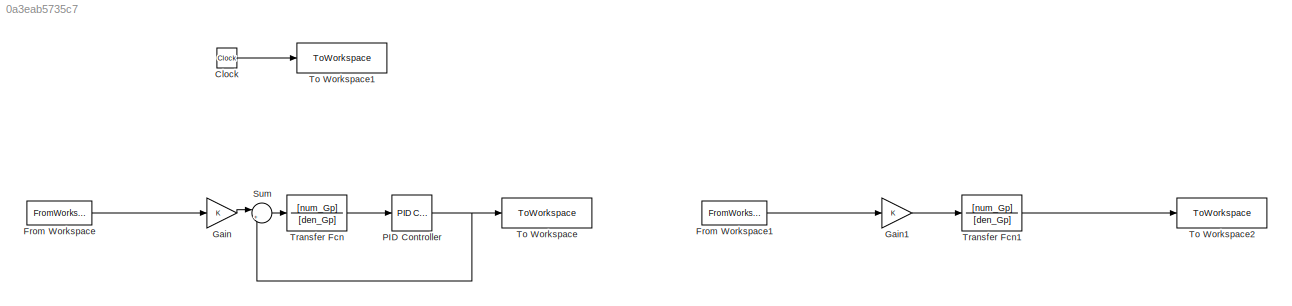
MODEL slx_0a3eab5735c7
KIND model
CONFIG AbsTol = auto
CONFIG EnableMultiTasking = off
CONFIG FixedStep = auto
CONFIG MaxStep = auto
CONFIG MinStep = auto
CONFIG RelTol = 1e-3
CONFIG SampleTimeConstraint = Unconstrained
CONFIG SolverName = VariableStepAuto
CONFIG StartTime = 0.0
CONFIG StopTime = Tf
BLOCK [Clock] Clock
BLOCK [FromWorkspace] From Workspace
  Commented = on
  VariableName = xt
BLOCK [FromWorkspace] From Workspace1
  VariableName = xt
BLOCK [Gain] Gain
  Commented = on
BLOCK [Gain] Gain1
BLOCK [Reference] PID Controller  REF=slpidlib/PID Controller
  Commented = on
  LibrarySourceBlock = simulink/Continuous/PID Controller
  SourceBlock = slpidlib/PID Controller
  SourceType = PID 1dof
BLOCK [Sum] Sum
  Commented = on
  Inputs = |+-
BLOCK [ToWorkspace] To Workspace
  Commented = on
  FixptAsFi = on
  MaxDataPoints = inf
  SampleTime = -1
  VariableName = ys
BLOCK [ToWorkspace] To Workspace1
  FixptAsFi = on
  MaxDataPoints = inf
  SampleTime = -1
  VariableName = ts
BLOCK [ToWorkspace] To Workspace2
  FixptAsFi = on
  MaxDataPoints = inf
  SampleTime = -1
  VariableName = ys
BLOCK [TransferFcn] Transfer Fcn
  Commented = on
  Denominator = [den_Gp]
  Numerator = [num_Gp]
BLOCK [TransferFcn] Transfer Fcn1
  Denominator = [den_Gp]
  Numerator = [num_Gp]
LINE Clock:1 -> To Workspace1:1
LINE From Workspace1:1 -> Gain1:1
LINE From Workspace:1 -> Gain:1
LINE Gain1:1 -> Transfer Fcn1:1
LINE Gain:1 -> Sum:1
NET PID Controller:1 -> Sum:2, To Workspace:1
LINE Sum:1 -> Transfer Fcn:1
LINE Transfer Fcn1:1 -> To Workspace2:1
LINE Transfer Fcn:1 -> PID Controller:1
note: NET lines group one-source signal fan-out (src -> all destinations, sorted); 1:1 wires keep LINE
